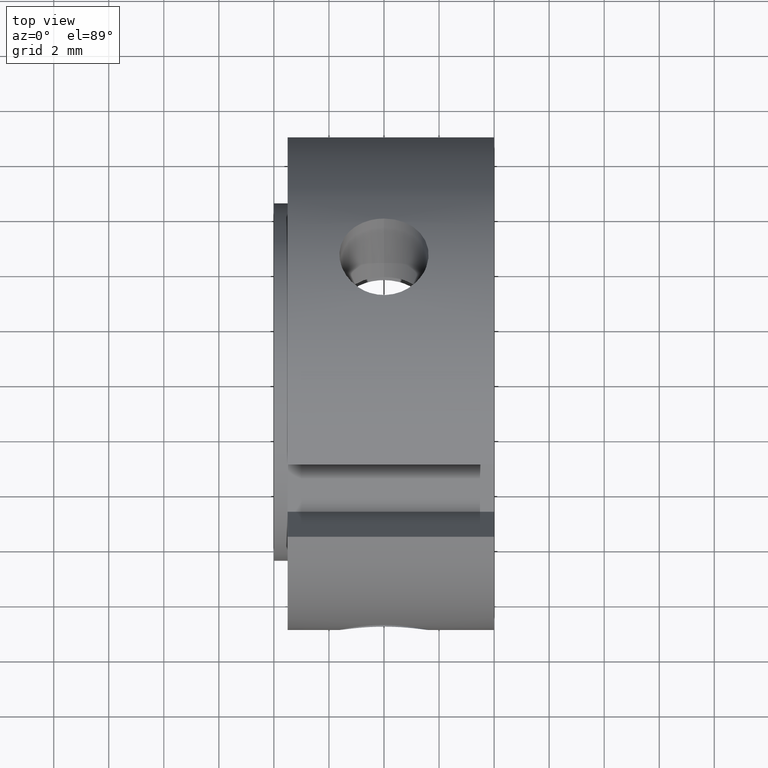
[diagram: clean part render]
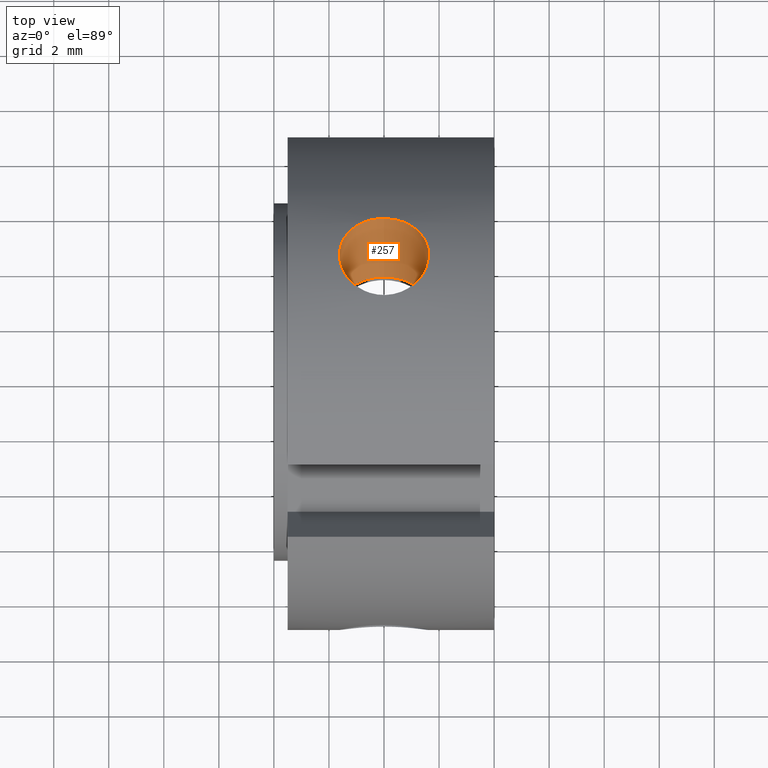
[diagram: same view with one face highlighted and labeled with its STEP entity id]
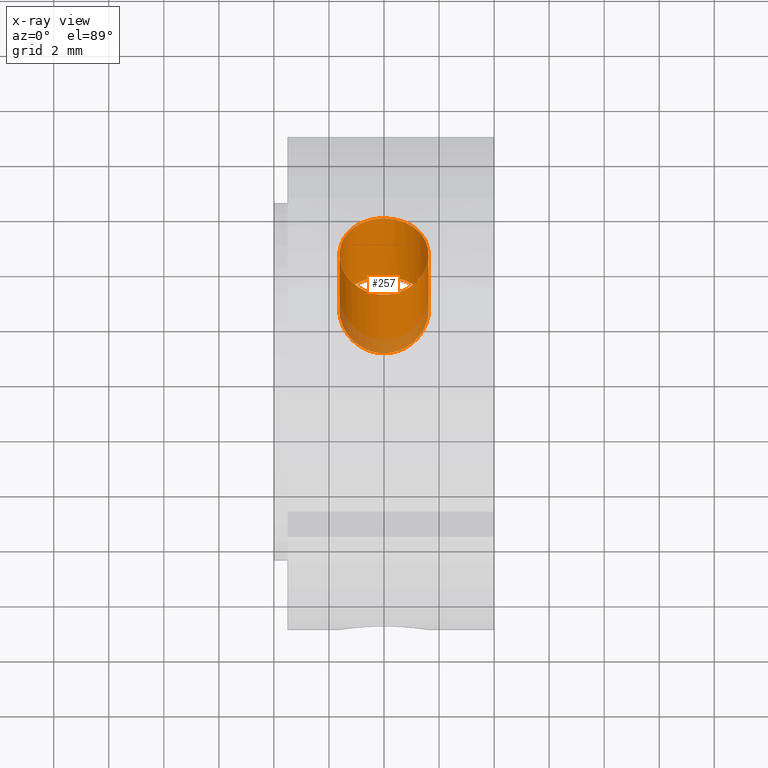
[diagram: x-ray of the same camera — body ghosted, the highlighted face saturated]
A machine part, top view. The second image highlights one B-rep face of the part: STEP entity #257.
The next image is the same camera in x-ray: the body ghosted, the highlighted face saturated — about 13% of this face is hidden behind the body in this view.
In plain terms, the highlighted cylindrical surface (bore or boss wall) has radius 1.621 mm, axis along (0, -0.5, -0.866).
Its self-contained STEP definition (entity closure, byte-faithful):
#170=CARTESIAN_POINT('',(3.999999999999996,13.299287143900710,23.035041037683580));
#171=DIRECTION('',(0.0,-0.500000000000001,-0.866025403784438));
#172=DIRECTION('',(-1.0,0.0,0.0));
#173=AXIS2_PLACEMENT_3D('',#170,#171,#172);
#174=CYLINDRICAL_SURFACE('',#173,1.621000000000000);
#175=CARTESIAN_POINT('',(3.999999999999996,5.830235401784305,6.856263935977154));
#176=VERTEX_POINT('',#175);
#177=CARTESIAN_POINT('',(3.999999999999996,5.830235401784305,6.856263935977155));
#178=CARTESIAN_POINT('',(4.204019456087718,5.830235401784305,6.856263935977155));
#179=CARTESIAN_POINT('',(4.421325716287625,5.798736983839970,6.883436461174053));
#180=CARTESIAN_POINT('',(4.820570121582451,5.669320490799566,6.990411518329125));
#181=CARTESIAN_POINT('',(5.002547533836669,5.571211567710552,7.069836193449889));
#182=CARTESIAN_POINT('',(5.289887393896619,5.340815656479117,7.245458489460813));
#183=CARTESIAN_POINT('',(5.414568672892385,5.193011015722373,7.353412661286302));
#184=CARTESIAN_POINT('',(5.580137162663212,4.861054425375095,7.576951303002356));
#185=CARTESIAN_POINT('',(5.620999999999996,4.676679567025999,7.692222638477178));
#186=CARTESIAN_POINT('',(5.620999999999996,4.323320432974009,7.896234629642708));
#187=CARTESIAN_POINT('',(5.580137162663210,4.131305098950108,7.998272273054773));
#188=CARTESIAN_POINT('',(5.414568672892386,3.771736661322898,8.173985792391154));
#189=CARTESIAN_POINT('',(5.289887393896620,3.604343285699142,8.248011280170980));
#190=CARTESIAN_POINT('',(5.002547533836670,3.337051960267016,8.359728844220006));
#191=CARTESIAN_POINT('',(4.820570121582453,3.219213712380597,8.404981326392644));
#192=CARTESIAN_POINT('',(4.421325716287628,3.061862348792810,8.463571768456792));
#193=CARTESIAN_POINT('',(4.204019456087718,3.022581042715155,8.477263935977156));
#194=CARTESIAN_POINT('',(3.795980543912274,3.022581042715155,8.477263935977156));
#195=CARTESIAN_POINT('',(3.578674283712364,3.061862348792810,8.463571768456792));
#196=CARTESIAN_POINT('',(3.179429878417539,3.219213712380597,8.404981326392644));
#197=CARTESIAN_POINT('',(2.997452466163322,3.337051960267016,8.359728844220006));
#198=CARTESIAN_POINT('',(2.710112606103373,3.604343285699142,8.248011280170980));
#199=CARTESIAN_POINT('',(2.585431327107606,3.771736661322897,8.173985792391152));
#200=CARTESIAN_POINT('',(2.419862837336780,4.131305098950107,7.998272273054772));
#201=CARTESIAN_POINT('',(2.378999999999996,4.323320432974009,7.896234629642708));
#202=CARTESIAN_POINT('',(2.378999999999996,4.676679567025998,7.692222638477179));
#203=CARTESIAN_POINT('',(2.419862837336780,4.861054425375094,7.576951303002356));
#204=CARTESIAN_POINT('',(2.585431327107606,5.193011015722373,7.353412661286301));
#205=CARTESIAN_POINT('',(2.710112606103373,5.340815656479114,7.245458489460811));
#206=CARTESIAN_POINT('',(2.997452466163323,5.571211567710551,7.069836193449889));
#207=CARTESIAN_POINT('',(3.179429878417540,5.669320490799566,6.990411518329125));
#208=CARTESIAN_POINT('',(3.578674283712366,5.798736983839970,6.883436461174053));
#209=CARTESIAN_POINT('',(3.795980543912274,5.830235401784305,6.856263935977155));
#210=CARTESIAN_POINT('',(3.999999999999996,5.830235401784305,6.856263935977155));
#211=B_SPLINE_CURVE_WITH_KNOTS('',3,(#177,#178,#179,#180,#181,#182,#183,#184,#185,#186,#187,#188,#189,#190,#191,#192,#193,#194,#195,#196,#197,#198,#199,#200,#201,#202,#203,#204,#205,#206,#207,#208,#209,#210),.UNSPECIFIED.,.T.,.U.,(4,2,2,2,2,2,2,2,2,2,2,2,2,2,2,2,4),(0.0,0.061205836826316,0.122411673652633,0.183615271002292,0.244818868351951,0.306022465701609,0.367226063051268,0.428431899877585,0.489637736703901,0.550843573530218,0.612049410356534,0.673253007706193,0.734456605055852,0.795660202405511,0.856863799755169,0.918069636581486,0.979275473407803),.UNSPECIFIED.);
#212=EDGE_CURVE('',#176,#176,#211,.T.);
#213=ORIENTED_EDGE('',*,*,#212,.F.);
#214=EDGE_LOOP('',(#213));
#215=FACE_OUTER_BOUND('',#214,.T.);
#216=CARTESIAN_POINT('',(3.999999999999996,3.768798585281378,3.285750633201048));
#217=VERTEX_POINT('',#216);
#218=CARTESIAN_POINT('',(3.999999999999996,3.768798585281378,3.285750633201046));
#219=CARTESIAN_POINT('',(3.794809539521241,3.768798585281378,3.285750633201046));
#220=CARTESIAN_POINT('',(3.577054941118310,3.740397691436228,3.319183643325634));
#221=CARTESIAN_POINT('',(3.178172193797659,3.622773598257651,3.447182335442574));
#222=CARTESIAN_POINT('',(2.996900401569944,3.533170576328356,3.540949777654646));
#223=CARTESIAN_POINT('',(2.710718451743308,3.319029958881614,3.742411247925990));
#224=CARTESIAN_POINT('',(2.586190709500041,3.179798235835304,3.863845716307065));
#225=CARTESIAN_POINT('',(2.420292057209590,2.859305773697226,4.106676397208969));
#226=CARTESIAN_POINT('',(2.378999999999996,2.677626849186988,4.227574109728781));
#227=CARTESIAN_POINT('',(2.378999999999996,2.322373150813019,4.432679928115602));
#228=CARTESIAN_POINT('',(2.420292057209590,2.126833198256315,4.529569635813798));
#229=CARTESIAN_POINT('',(2.586190709500040,1.756289428707955,4.685708909295844));
#230=CARTESIAN_POINT('',(2.710718451743308,1.581508232671730,4.745569884276090));
#231=CARTESIAN_POINT('',(2.996900401569944,1.299967172809612,4.830290363831383));
#232=CARTESIAN_POINT('',(3.178172193797660,1.173960674841420,4.861005135971972));
#233=CARTESIAN_POINT('',(3.577054941118311,1.004298509227679,4.898871242703257));
#234=CARTESIAN_POINT('',(3.794809539521240,0.961144226212224,4.906750633201048));
#235=CARTESIAN_POINT('',(4.205190460478751,0.961144226212224,4.906750633201048));
#236=CARTESIAN_POINT('',(4.422945058881682,1.004298509227680,4.898871242703257));
#237=CARTESIAN_POINT('',(4.821827806202333,1.173960674841421,4.861005135971971));
#238=CARTESIAN_POINT('',(5.003099598430048,1.299967172809612,4.830290363831383));
#239=CARTESIAN_POINT('',(5.289281548256684,1.581508232671730,4.745569884276090));
#240=CARTESIAN_POINT('',(5.413809290499950,1.756289428707955,4.685708909295845));
#241=CARTESIAN_POINT('',(5.579707942790400,2.126833198256315,4.529569635813799));
#242=CARTESIAN_POINT('',(5.620999999999996,2.322373150813019,4.432679928115602));
#243=CARTESIAN_POINT('',(5.620999999999996,2.677626849186988,4.227574109728781));
#244=CARTESIAN_POINT('',(5.579707942790400,2.859305773697226,4.106676397208969));
#245=CARTESIAN_POINT('',(5.413809290499950,3.179798235835304,3.863845716307065));
#246=CARTESIAN_POINT('',(5.289281548256684,3.319029958881614,3.742411247925989));
#247=CARTESIAN_POINT('',(5.003099598430048,3.533170576328356,3.540949777654645));
#248=CARTESIAN_POINT('',(4.821827806202332,3.622773598257651,3.447182335442574));
#249=CARTESIAN_POINT('',(4.422945058881682,3.740397691436228,3.319183643325634));
#250=CARTESIAN_POINT('',(4.205190460478750,3.768798585281378,3.285750633201046));
#251=CARTESIAN_POINT('',(3.999999999999995,3.768798585281378,3.285750633201046));
#252=B_SPLINE_CURVE_WITH_KNOTS('',3,(#218,#219,#220,#221,#222,#223,#224,#225,#226,#227,#228,#229,#230,#231,#232,#233,#234,#235,#236,#237,#238,#239,#240,#241,#242,#243,#244,#245,#246,#247,#248,#249,#250,#251),.UNSPECIFIED.,.T.,.U.,(4,2,2,2,2,2,2,2,2,2,2,2,2,2,2,2,4),(0.0,0.061557138143626,0.123114276287253,0.184646021803299,0.246177767319345,0.307709512835392,0.369241258351438,0.430798396495065,0.492355534638691,0.553912672782318,0.615469810925944,0.677001556441990,0.738533301958037,0.800065047474083,0.861596792990129,0.923153931133756,0.984711069277382),.UNSPECIFIED.);
#253=EDGE_CURVE('',#217,#217,#252,.T.);
#254=ORIENTED_EDGE('',*,*,#253,.F.);
#255=EDGE_LOOP('',(#254));
#256=FACE_BOUND('',#255,.T.);
#257=ADVANCED_FACE('',(#215,#256),#174,.F.);